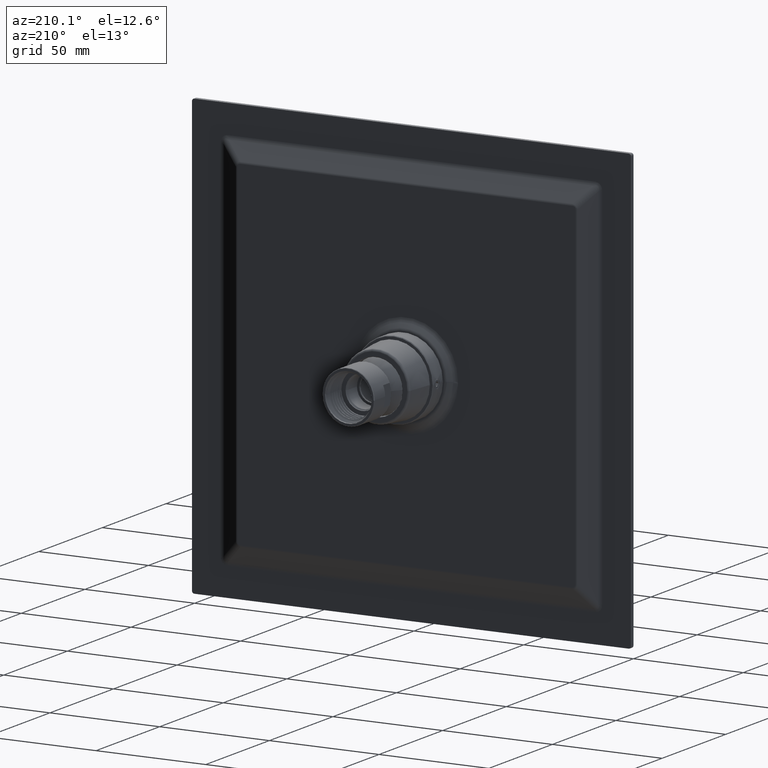
[diagram: clean part render]
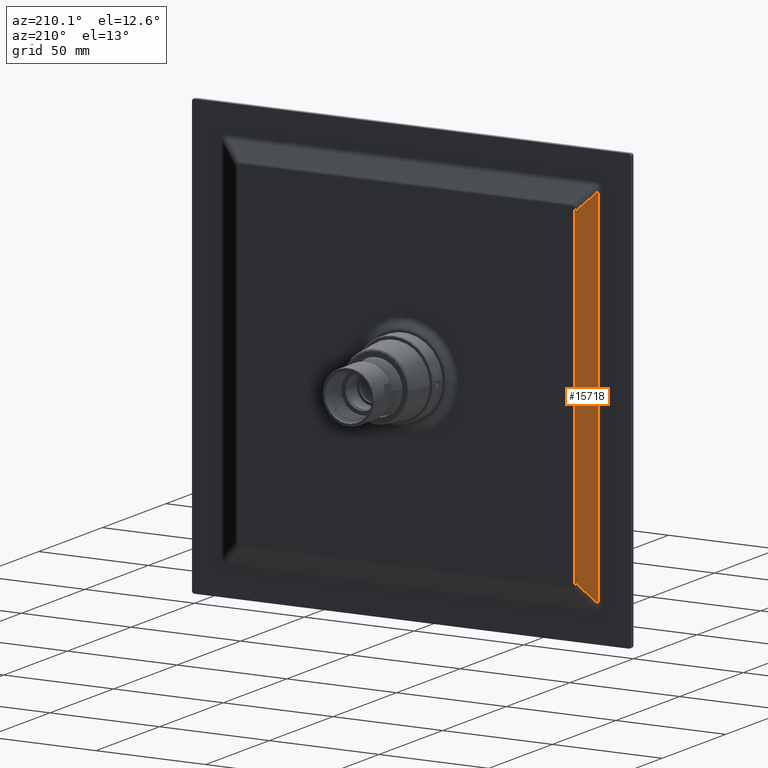
[diagram: same view with one face highlighted and labeled with its STEP entity id]
A machine part, auxiliary view. The second image highlights one B-rep face of the part: STEP entity #15718.
In plain terms, the highlighted planar face has unit normal (0.4183, -0.9083, 0).
Its self-contained STEP definition (entity closure, byte-faithful):
#13605=DIRECTION('',(-1.518015118981E-9,2.752563083138E-9,-1.E0));
#13606=VECTOR('',#13605,1.514899470798E2);
#13607=CARTESIAN_POINT('',(-7.783668425508E1,3.816579194448E0,
7.574497362420E1));
#13608=LINE('',#13607,#13606);
#13619=DIRECTION('',(-6.723480767113E-1,-3.096713548759E-1,6.723479126999E-1));
#13620=VECTOR('',#13619,1.113998644708E1);
#13621=CARTESIAN_POINT('',(-7.783668425508E1,3.816579194448E0,
7.574497362420E1));
#13622=LINE('',#13621,#13620);
#13626=DIRECTION('',(6.723480505825E-1,3.096713901238E-1,6.723479225942E-1));
#13627=VECTOR('',#13626,1.113998653609E1);
#13628=CARTESIAN_POINT('',(-8.532663271610E1,3.668444948430E-1,
-8.323492026082E1));
#13629=LINE('',#13628,#13627);
#14046=DIRECTION('',(-7.601922482107E-12,1.945564575225E-11,1.E0));
#14047=VECTOR('',#14046,1.664698405202E2);
#14048=CARTESIAN_POINT('',(-8.532663271610E1,3.668444948430E-1,
-8.323492026082E1));
#14049=LINE('',#14048,#14047);
#15451=CARTESIAN_POINT('',(-7.783668425508E1,3.816579194448E0,
7.574497362420E1));
#15452=CARTESIAN_POINT('',(-7.783668448504E1,3.816579611434E0,
-7.574497345556E1));
#15453=VERTEX_POINT('',#15451);
#15454=VERTEX_POINT('',#15452);
#15459=CARTESIAN_POINT('',(-8.532663271736E1,3.668444980817E-1,
8.323492025940E1));
#15460=VERTEX_POINT('',#15459);
#15461=CARTESIAN_POINT('',(-8.532663271610E1,3.668444948430E-1,
-8.323492026082E1));
#15462=VERTEX_POINT('',#15461);
#15704=CARTESIAN_POINT('',(-8.532663163471E1,3.668418264480E-1,-1.E2));
#15705=DIRECTION('',(4.183420913224E-1,-9.082895433880E-1,0.E0));
#15706=DIRECTION('',(9.082895433880E-1,4.183420913224E-1,0.E0));
#15707=AXIS2_PLACEMENT_3D('',#15704,#15705,#15706);
#15708=PLANE('',#15707);
#15710=ORIENTED_EDGE('',*,*,#15709,.T.);
#15712=ORIENTED_EDGE('',*,*,#15711,.F.);
#15714=ORIENTED_EDGE('',*,*,#15713,.T.);
#15715=ORIENTED_EDGE('',*,*,#15693,.F.);
#15716=EDGE_LOOP('',(#15710,#15712,#15714,#15715));
#15717=FACE_OUTER_BOUND('',#15716,.F.);
#15718=ADVANCED_FACE('',(#15717),#15708,.F.);
#15693=EDGE_CURVE('',#15453,#15454,#13608,.T.);
#15709=EDGE_CURVE('',#15453,#15460,#13622,.T.);
#15711=EDGE_CURVE('',#15462,#15460,#14049,.T.);
#15713=EDGE_CURVE('',#15462,#15454,#13629,.T.);